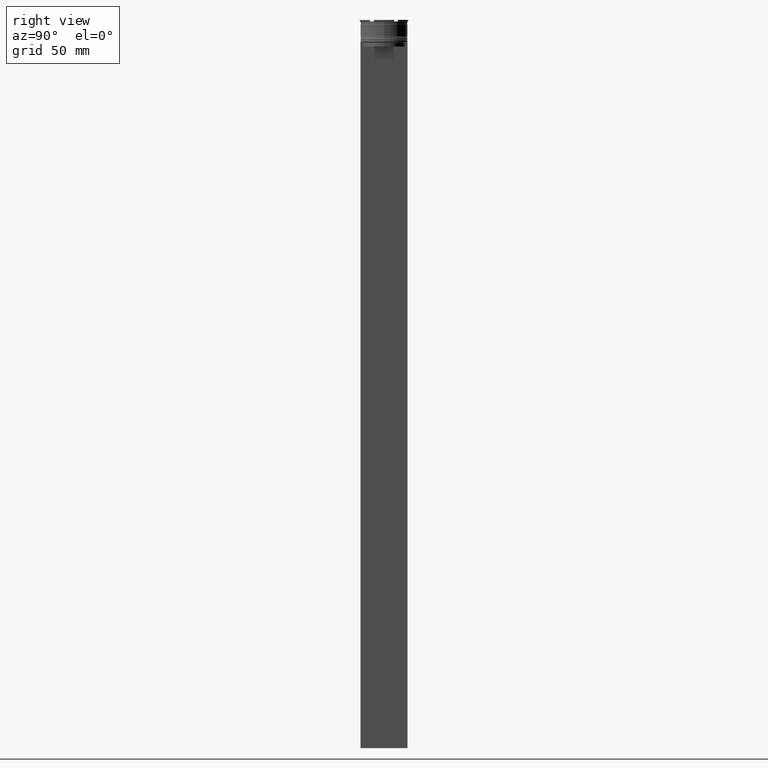
[diagram: clean part render]
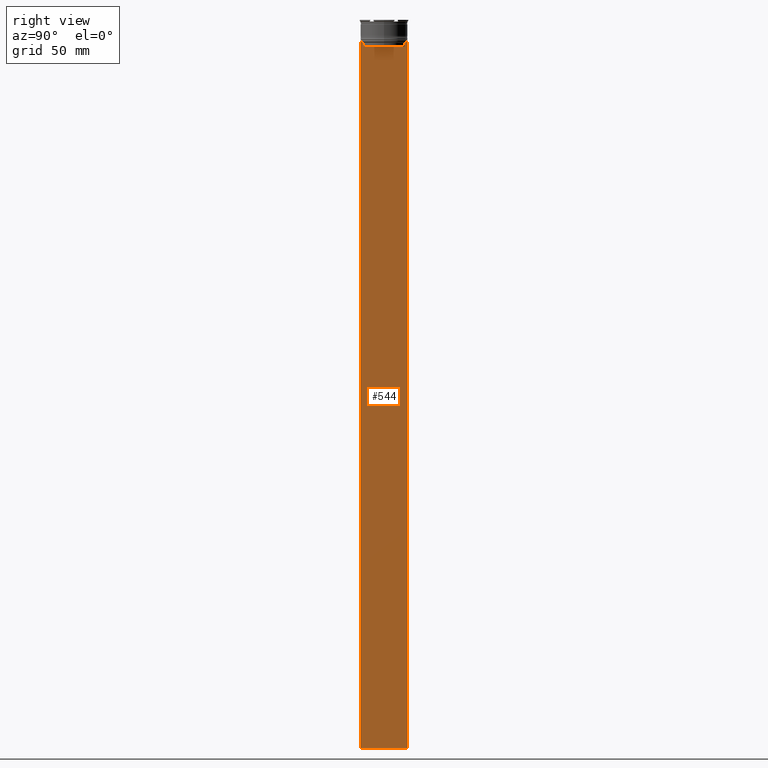
[diagram: same view with one face highlighted and labeled with its STEP entity id]
A machine part, right view. The second image highlights one B-rep face of the part: STEP entity #544.
In plain terms, the highlighted planar face has unit normal (-1, 0, 0).
Its self-contained STEP definition (entity closure, byte-faithful):
#50 = CARTESIAN_POINT ( 'NONE',  ( 0.5000000000000001110, 14.99999999999999645, -14.00000000000000178 ) ) ;
#109 = ORIENTED_EDGE ( 'NONE', *, *, #2196, .T. ) ;
#154 = CARTESIAN_POINT ( 'NONE',  ( 0.5000000000000001110, -15.00000000000000355, 16.01666203960726165 ) ) ;
#180 = DIRECTION ( 'NONE',  ( 0.000000000000000000, 0.000000000000000000, -1.000000000000000000 ) ) ;
#187 = VECTOR ( 'NONE', #1228, 1000.000000000000000 ) ;
#218 = EDGE_CURVE ( 'NONE', #2606, #852, #1974, .T. ) ;
#239 = LINE ( 'NONE', #894, #1848 ) ;
#293 = CARTESIAN_POINT ( 'NONE',  ( 0.5000000000000001110, 13.72422766736833744, -14.16666868251365052 ) ) ;
#318 = CARTESIAN_POINT ( 'NONE',  ( 0.5000000000000001110, 13.40000000000000391, -17.00000000000000000 ) ) ;
#321 = CARTESIAN_POINT ( 'NONE',  ( 0.5000000000000001110, 14.99999999999999645, 16.01666203960726165 ) ) ;
#337 = VERTEX_POINT ( 'NONE', #50 ) ;
#368 = ORIENTED_EDGE ( 'NONE', *, *, #2259, .T. ) ;
#387 = B_SPLINE_CURVE_WITH_KNOTS ( 'NONE', 3,
 ( #2096, #293, #2344, #514 ),
 .UNSPECIFIED., .F., .F.,
 ( 4, 4 ),
 ( 0.02359665025569774102, 0.02430399458637444096 ),
 .UNSPECIFIED. ) ;
#404 = CARTESIAN_POINT ( 'NONE',  ( 0.5000000000000001110, -13.39066839257847086, -17.00000000000000000 ) ) ;
#425 = EDGE_LOOP ( 'NONE', ( #836, #1345, #551, #1804, #109, #1962, #1539, #1661, #917, #784, #1010, #368 ) ) ;
#439 = VERTEX_POINT ( 'NONE', #1353 ) ;
#514 = CARTESIAN_POINT ( 'NONE',  ( 0.5000000000000001110, 13.39066839257847263, -14.49999999999999822 ) ) ;
#544 = ADVANCED_FACE ( 'NONE', ( #1867 ), #2748, .F. ) ;
#545 = DIRECTION ( 'NONE',  ( 0.000000000000000000, 1.000000000000000000, 0.000000000000000000 ) ) ;
#546 = CARTESIAN_POINT ( 'NONE',  ( 0.5000000000000001110, 14.99999999999999645, -464.0000000000000000 ) ) ;
#551 = ORIENTED_EDGE ( 'NONE', *, *, #218, .T. ) ;
#562 = DIRECTION ( 'NONE',  ( 0.000000000000000000, -1.000000000000000000, 0.000000000000000000 ) ) ;
#567 = VECTOR ( 'NONE', #562, 1000.000000000000000 ) ;
#601 = CARTESIAN_POINT ( 'NONE',  ( 0.5000000000000001110, -13.72422766745777167, -14.16666868242427135 ) ) ;
#643 = EDGE_CURVE ( 'NONE', #852, #1654, #2056, .T. ) ;
#732 = EDGE_CURVE ( 'NONE', #439, #1110, #2621, .T. ) ;
#744 = VERTEX_POINT ( 'NONE', #823 ) ;
#783 = AXIS2_PLACEMENT_3D ( 'NONE', #958, #1407, #1633 ) ;
#784 = ORIENTED_EDGE ( 'NONE', *, *, #1106, .T. ) ;
#823 = CARTESIAN_POINT ( 'NONE',  ( 0.5000000000000001110, -14.89160837518903513, -14.00000000000000178 ) ) ;
#828 = VERTEX_POINT ( 'NONE', #1973 ) ;
#836 = ORIENTED_EDGE ( 'NONE', *, *, #2121, .T. ) ;
#852 = VERTEX_POINT ( 'NONE', #861 ) ;
#859 = EDGE_CURVE ( 'NONE', #1729, #744, #239, .T. ) ;
#861 = CARTESIAN_POINT ( 'NONE',  ( 0.5000000000000001110, 13.39066839257847086, -17.00000000000000000 ) ) ;
#894 = CARTESIAN_POINT ( 'NONE',  ( 0.5000000000000001110, -15.00000000000000355, -14.00000000000000178 ) ) ;
#917 = ORIENTED_EDGE ( 'NONE', *, *, #732, .T. ) ;
#958 = CARTESIAN_POINT ( 'NONE',  ( 0.5000000000000001110, -15.00000000000000355, 16.01666203960726165 ) ) ;
#997 = CARTESIAN_POINT ( 'NONE',  ( 0.5000000000000001110, -15.00000000000000355, -14.00000000000000178 ) ) ;
#1010 = ORIENTED_EDGE ( 'NONE', *, *, #1456, .F. ) ;
#1044 = DIRECTION ( 'NONE',  ( 0.000000000000000000, -1.000000000000000000, 0.000000000000000000 ) ) ;
#1061 = VECTOR ( 'NONE', #545, 1000.000000000000000 ) ;
#1106 = EDGE_CURVE ( 'NONE', #1110, #2352, #1667, .T. ) ;
#1110 = VERTEX_POINT ( 'NONE', #2063 ) ;
#1125 = LINE ( 'NONE', #2272, #2694 ) ;
#1146 = B_SPLINE_CURVE_WITH_KNOTS ( 'NONE', 3,
 ( #2602, #2162, #601, #2617 ),
 .UNSPECIFIED., .F., .F.,
 ( 4, 4 ),
 ( 0.06160226316123722928, 0.06231007364084064498 ),
 .UNSPECIFIED. ) ;
#1217 = EDGE_CURVE ( 'NONE', #2407, #1729, #1146, .T. ) ;
#1228 = DIRECTION ( 'NONE',  ( 0.000000000000000000, -1.000000000000000000, 0.000000000000000000 ) ) ;
#1286 = DIRECTION ( 'NONE',  ( 0.000000000000000000, 0.000000000000000000, -1.000000000000000000 ) ) ;
#1299 = VECTOR ( 'NONE', #2663, 1000.000000000000000 ) ;
#1343 = CARTESIAN_POINT ( 'NONE',  ( 0.5000000000000001110, 13.39066839257847263, 0.000000000000000000 ) ) ;
#1345 = ORIENTED_EDGE ( 'NONE', *, *, #2726, .T. ) ;
#1353 = CARTESIAN_POINT ( 'NONE',  ( 0.5000000000000001110, -15.00000000000000355, -14.00000000000000178 ) ) ;
#1354 = DIRECTION ( 'NONE',  ( -0.000000000000000000, -0.000000000000000000, 1.000000000000000000 ) ) ;
#1402 = CARTESIAN_POINT ( 'NONE',  ( 0.5000000000000001110, -15.00000000000000355, -14.00000000000000178 ) ) ;
#1407 = DIRECTION ( 'NONE',  ( -1.000000000000000000, 0.000000000000000000, 0.000000000000000000 ) ) ;
#1456 = EDGE_CURVE ( 'NONE', #337, #2352, #2073, .T. ) ;
#1533 = CARTESIAN_POINT ( 'NONE',  ( 0.5000000000000001110, -13.89100428334828230, -14.00000000000000178 ) ) ;
#1539 = ORIENTED_EDGE ( 'NONE', *, *, #859, .T. ) ;
#1568 = DIRECTION ( 'NONE',  ( 0.000000000000000000, -1.000000000000000000, 0.000000000000000000 ) ) ;
#1594 = LINE ( 'NONE', #2032, #1299 ) ;
#1633 = DIRECTION ( 'NONE',  ( 0.000000000000000000, 0.000000000000000000, 1.000000000000000000 ) ) ;
#1654 = VERTEX_POINT ( 'NONE', #404 ) ;
#1661 = ORIENTED_EDGE ( 'NONE', *, *, #2317, .T. ) ;
#1667 = LINE ( 'NONE', #2535, #1061 ) ;
#1729 = VERTEX_POINT ( 'NONE', #1533 ) ;
#1804 = ORIENTED_EDGE ( 'NONE', *, *, #643, .T. ) ;
#1848 = VECTOR ( 'NONE', #1568, 1000.000000000000000 ) ;
#1867 = FACE_OUTER_BOUND ( 'NONE', #425, .T. ) ;
#1896 = VECTOR ( 'NONE', #2543, 1000.000000000000000 ) ;
#1943 = CARTESIAN_POINT ( 'NONE',  ( 0.5000000000000001110, -13.39066839257847263, -14.49999999999999822 ) ) ;
#1962 = ORIENTED_EDGE ( 'NONE', *, *, #1217, .T. ) ;
#1973 = CARTESIAN_POINT ( 'NONE',  ( 0.5000000000000001110, 13.89100428334828230, -14.00000000000000178 ) ) ;
#1974 = LINE ( 'NONE', #1343, #2819 ) ;
#2032 = CARTESIAN_POINT ( 'NONE',  ( 0.5000000000000001110, -15.00000000000000355, -14.00000000000000178 ) ) ;
#2049 = CARTESIAN_POINT ( 'NONE',  ( 0.5000000000000001110, 13.39066839257847263, -14.49999999999999822 ) ) ;
#2056 = LINE ( 'NONE', #318, #2078 ) ;
#2063 = CARTESIAN_POINT ( 'NONE',  ( 0.5000000000000001110, -15.00000000000000355, -464.0000000000000000 ) ) ;
#2073 = LINE ( 'NONE', #321, #1896 ) ;
#2078 = VECTOR ( 'NONE', #1044, 1000.000000000000000 ) ;
#2096 = CARTESIAN_POINT ( 'NONE',  ( 0.5000000000000001110, 13.89100428334828230, -14.00000000000000178 ) ) ;
#2121 = EDGE_CURVE ( 'NONE', #2193, #828, #1594, .T. ) ;
#2162 = CARTESIAN_POINT ( 'NONE',  ( 0.5000000000000001110, -13.55744911241550099, -14.33333542435722663 ) ) ;
#2193 = VERTEX_POINT ( 'NONE', #2473 ) ;
#2196 = EDGE_CURVE ( 'NONE', #1654, #2407, #1125, .T. ) ;
#2259 = EDGE_CURVE ( 'NONE', #337, #2193, #2522, .T. ) ;
#2272 = CARTESIAN_POINT ( 'NONE',  ( 0.5000000000000001110, -13.39066839257847263, 0.000000000000000000 ) ) ;
#2317 = EDGE_CURVE ( 'NONE', #744, #439, #2565, .T. ) ;
#2344 = CARTESIAN_POINT ( 'NONE',  ( 0.5000000000000001110, 13.55744911232272543, -14.33333542444994002 ) ) ;
#2352 = VERTEX_POINT ( 'NONE', #546 ) ;
#2407 = VERTEX_POINT ( 'NONE', #1943 ) ;
#2446 = VECTOR ( 'NONE', #180, 1000.000000000000000 ) ;
#2473 = CARTESIAN_POINT ( 'NONE',  ( 0.5000000000000001110, 14.89160837518903513, -14.00000000000000178 ) ) ;
#2522 = LINE ( 'NONE', #1402, #187 ) ;
#2535 = CARTESIAN_POINT ( 'NONE',  ( 0.5000000000000001110, -15.00000000000000355, -464.0000000000000000 ) ) ;
#2543 = DIRECTION ( 'NONE',  ( 0.000000000000000000, 0.000000000000000000, -1.000000000000000000 ) ) ;
#2565 = LINE ( 'NONE', #997, #567 ) ;
#2602 = CARTESIAN_POINT ( 'NONE',  ( 0.5000000000000001110, -13.39066839257847263, -14.49999999999999822 ) ) ;
#2606 = VERTEX_POINT ( 'NONE', #2049 ) ;
#2617 = CARTESIAN_POINT ( 'NONE',  ( 0.5000000000000001110, -13.89100428334828230, -14.00000000000000178 ) ) ;
#2621 = LINE ( 'NONE', #154, #2446 ) ;
#2663 = DIRECTION ( 'NONE',  ( 0.000000000000000000, -1.000000000000000000, 0.000000000000000000 ) ) ;
#2694 = VECTOR ( 'NONE', #1354, 1000.000000000000000 ) ;
#2726 = EDGE_CURVE ( 'NONE', #828, #2606, #387, .T. ) ;
#2748 = PLANE ( 'NONE',  #783 ) ;
#2819 = VECTOR ( 'NONE', #1286, 1000.000000000000000 ) ;